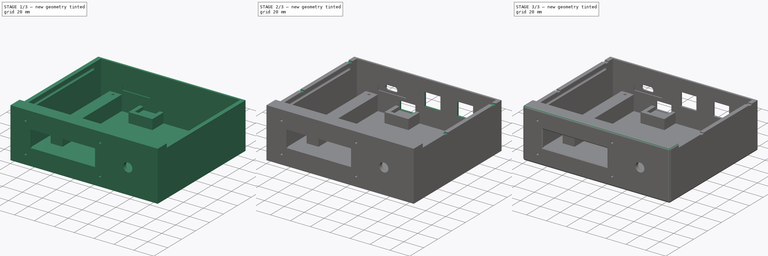
[diagram: build sequence overview — one tinted view per stage of 3, left to right]
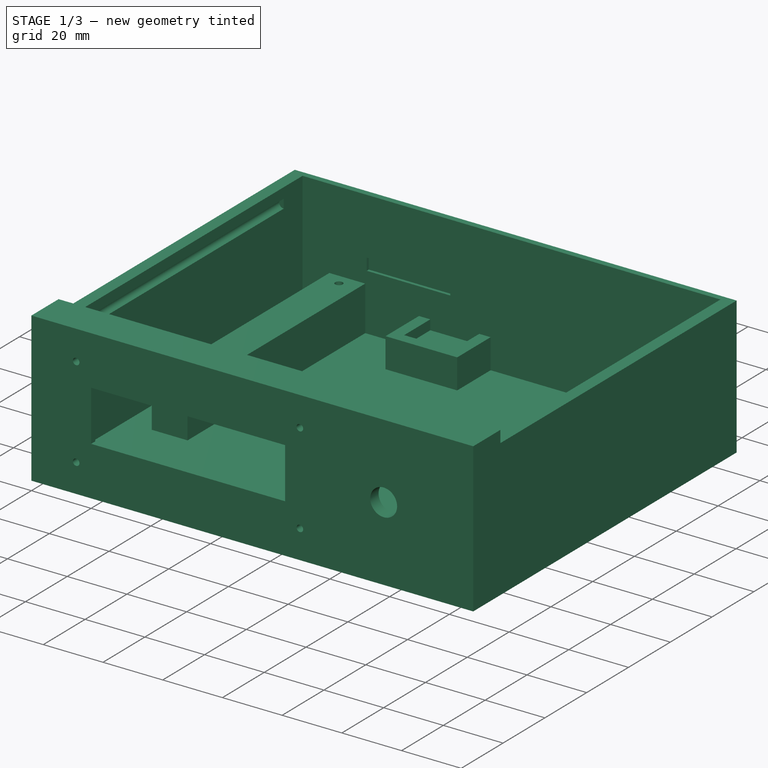
[diagram: stage 1 of 3 — iso view after this stage's code; geometry added in this stage tinted green]
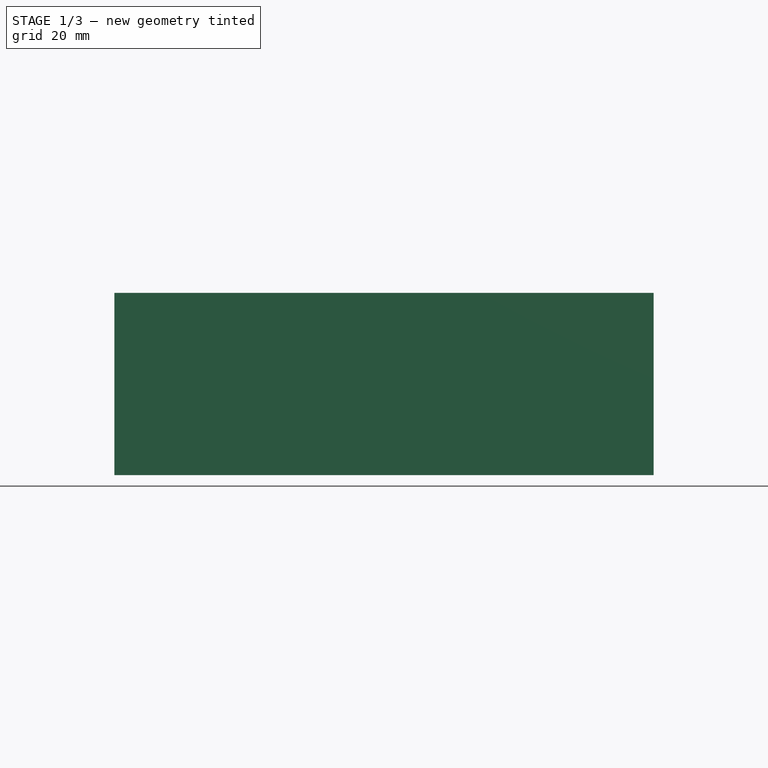
[diagram: stage 1 of 3 — front view after this stage's code; geometry added in this stage tinted green]
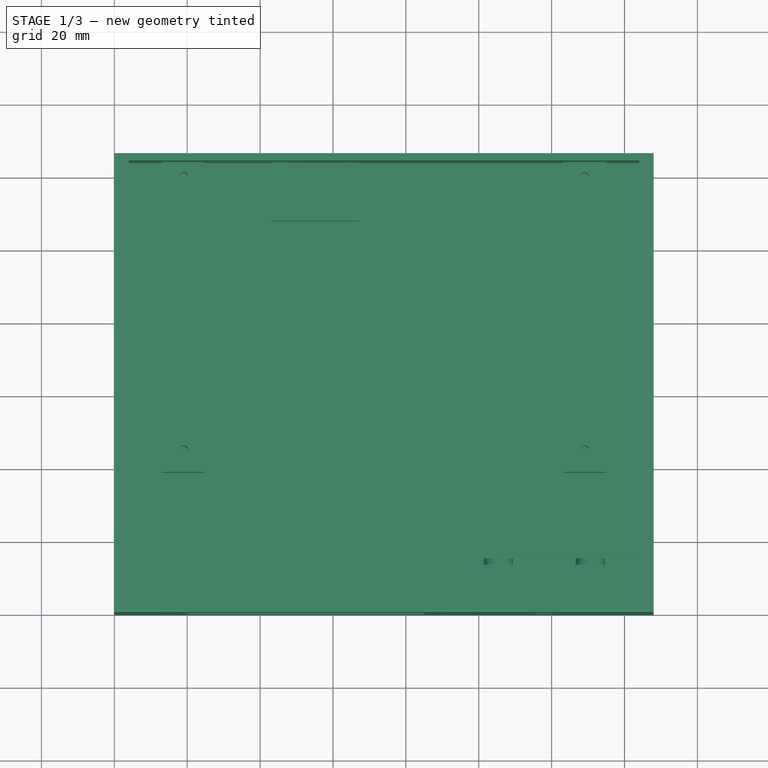
[diagram: stage 1 of 3 — top view after this stage's code; geometry added in this stage tinted green]
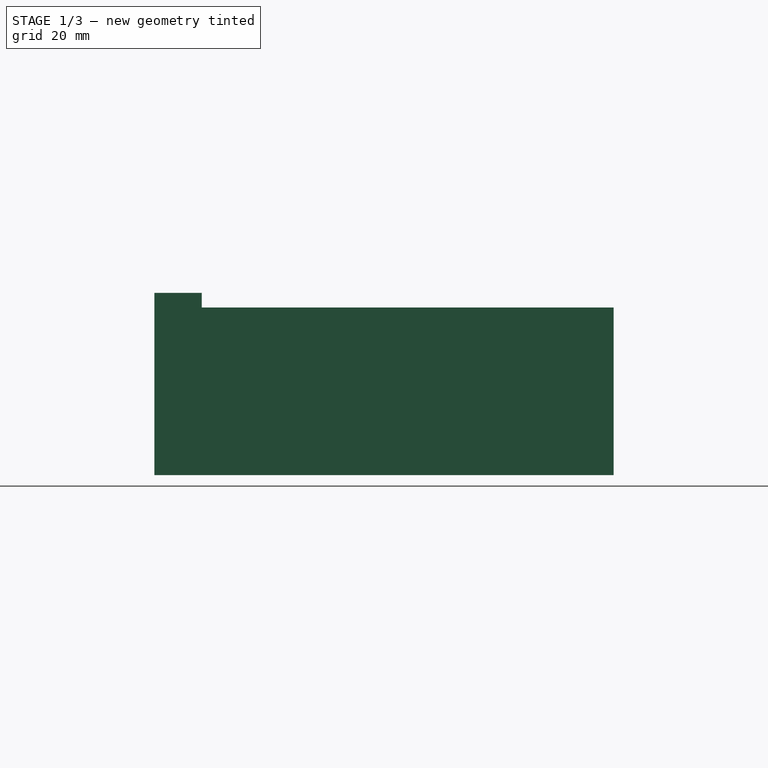
[diagram: stage 1 of 3 — right view after this stage's code; geometry added in this stage tinted green]
FCSTD DOCUMENT  (FreeCAD 0.21R33771 (Git))
Label: Enclosure
License: All rights reserved
LicenseURL: https://en.wikipedia.org/wiki/All_rights_reserved
objects: Sketcher::SketchObject×15, PartDesign::Pocket×8, PartDesign::Pad×7, PartDesign::Body×1, PartDesign::Fillet×1, PartDesign::Chamfer×1
note: 50 computed .brp shape members not serialized (recipe doc carries the construction recipe); baked Part::Feature solids carry a one-line shape summary decoded from their .brp

FEATURE [Sketcher::SketchObject] Sketch  label="Outside"
  FullyConstrained = true
  MapMode = 5
  Support = -> [XY_Plane]
  sketch-geometry (4):
    g0: LineSegment StartX=0 StartY=0 StartZ=0 EndX=148 EndY=0 EndZ=0
    g1: LineSegment StartX=148 StartY=0 StartZ=0 EndX=148 EndY=126 EndZ=0
    g2: LineSegment StartX=148 StartY=126 StartZ=0 EndX=0 EndY=126 EndZ=0
    g3: LineSegment StartX=0 StartY=126 StartZ=0 EndX=0 EndY=0 EndZ=0
  constraints (11):
    c: Coincident(g0,g1)
    c: Coincident(g1,g2)
    c: Coincident(g2,g3)
    c: Coincident(g3,g0)
    c: Horizontal(g0)
    c: Horizontal(g2)
    c: Vertical(g1)
    c: Vertical(g3)
    c: Coincident(g0,g-1)
    c: DistanceX(g2,g2) = 148
    c: DistanceY(g1,g1) = 126
FEATURE [PartDesign::Pad] Pad
  Direction = (0,0,1)
  Length = 50
  Length2 = 10
  Profile = -> Sketch
  ReferenceAxis = -> Sketch [N_Axis]
  Type = 0
FEATURE [Sketcher::SketchObject] Sketch001  label="Inside chamber"
  AttachmentOffset = pos=(0,0,4) rot=(0,0,1;0rad)
  FullyConstrained = true
  MapMode = 5
  Placement = pos=(0,0,4) rot=(0,0,1;0rad)
  Support = -> [XY_Plane]
  sketch-geometry (4):
    g0: LineSegment StartX=4 StartY=4 StartZ=0 EndX=144 EndY=4 EndZ=0
    g1: LineSegment StartX=144 StartY=4 StartZ=0 EndX=144 EndY=124 EndZ=0
    g2: LineSegment StartX=144 StartY=124 StartZ=0 EndX=4 EndY=124 EndZ=0
    g3: LineSegment StartX=4 StartY=124 StartZ=0 EndX=4 EndY=4 EndZ=0
  constraints (12):
    c: Coincident(g0,g1)
    c: Coincident(g1,g2)
    c: Coincident(g2,g3)
    c: Coincident(g3,g0)
    c: Horizontal(g0)
    c: Horizontal(g2)
    c: Vertical(g1)
    c: Vertical(g3)
    c: DistanceX(g0,g0) = 140
    c: DistanceX(g0) = 4
    c: DistanceY(g0) = 4
    c: DistanceY(g1,g1) = 120
FEATURE [PartDesign::Pocket] Pocket
  BaseFeature = -> Pad
  Direction = (0,0,-1)
  Length = 42
  Length2 = 5
  Profile = -> Sketch001
  ReferenceAxis = -> Sketch001 [N_Axis]
  Reversed = true
  Type = 0
FEATURE [Sketcher::SketchObject] Sketch002  label="Lid"
  FullyConstrained = true
  MapMode = 5
  Placement = pos=(0,0,50) rot=(0,0,1;0rad)
  Support = -> [Pocket]
  sketch-geometry (4):
    g0: LineSegment StartX=0 StartY=126 StartZ=0 EndX=148 EndY=126 EndZ=0
    g1: LineSegment StartX=148 StartY=126 StartZ=0 EndX=148 EndY=13 EndZ=0
    g2: LineSegment StartX=148 StartY=13 StartZ=0 EndX=0 EndY=13 EndZ=0
    g3: LineSegment StartX=0 StartY=13 StartZ=0 EndX=0 EndY=126 EndZ=0
  constraints (12):
    c: Coincident(g0,g1)
    c: Coincident(g1,g2)
    c: Coincident(g2,g3)
    c: Coincident(g3,g0)
    c: Horizontal(g0)
    c: Horizontal(g2)
    c: Vertical(g1)
    c: Vertical(g3)
    c: PointOnObject(g0,g-2)
    c: DistanceX(g0,g0) = 148
    c: DistanceY(g2) = 13
    c: DistanceY(g1,g1) = 113
FEATURE [PartDesign::Pocket] Pocket001
  BaseFeature = -> Pocket
  Direction = (0,0,-1)
  Length = 4
  Length2 = 5
  Profile = -> Sketch002
  ReferenceAxis = -> Sketch002 [N_Axis]
  Type = 0
FEATURE [Sketcher::SketchObject] Sketch003  label="Front holes"
  FullyConstrained = true
  MapMode = 5
  Placement = pos=(0,0,0) rot=(1,0,0;1.5708rad)
  Support = -> [Pocket001]
  sketch-geometry (9):
    g0: LineSegment StartX=20 StartY=33.5 StartZ=0 EndX=85 EndY=33.5 EndZ=0
    g1: LineSegment StartX=85 StartY=33.5 StartZ=0 EndX=85 EndY=16.5 EndZ=0
    g2: LineSegment StartX=85 StartY=16.5 StartZ=0 EndX=20 EndY=16.5 EndZ=0
    g3: LineSegment StartX=20 StartY=16.5 StartZ=0 EndX=20 EndY=33.5 EndZ=0
    g4: Circle CenterX=118 CenterY=25 CenterZ=0 NormalX=0 NormalY=0 NormalZ=1 AngleXU=0 Radius=4.5
    g5: Circle CenterX=15 CenterY=40.08 CenterZ=0 NormalX=0 NormalY=0 NormalZ=1 AngleXU=0 Radius=1.1
    g6: Circle CenterX=89.93 CenterY=40.08 CenterZ=0 NormalX=0 NormalY=0 NormalZ=1 AngleXU=0 Radius=1.1
    g7: Circle CenterX=89.93 CenterY=9.6 CenterZ=0 NormalX=0 NormalY=0 NormalZ=1 AngleXU=0 Radius=1.1
    g8: Circle CenterX=15 CenterY=9.6 CenterZ=0 NormalX=0 NormalY=0 NormalZ=1 AngleXU=0 Radius=1.1
  constraints (27):
    c: Coincident(g0,g1)
    c: Coincident(g1,g2)
    c: Coincident(g2,g3)
    c: Coincident(g3,g0)
    c: Horizontal(g0)
    c: Horizontal(g2)
    c: Vertical(g1)
    c: Vertical(g3)
    c: Diameter(g4) = 9
    c: DistanceX(g0,g0) = 65
    c: DistanceY(g3,g3) = 17
    c: DistanceY(g4) = 25
    c: DistanceX(g4) = 118
    c: DistanceX(g2) = 20
    c: DistanceY(g2) = 16.5
    c: Horizontal(g5,g6)
    c: Horizontal(g8,g7)
    c: Vertical(g5,g8)
    c: Vertical(g6,g7)
    c: Diameter(g5) = 2.2
    c: Equal(g5,g6)
    c: Equal(g6,g7)
    c: Equal(g7,g8)
    c: DistanceX(g5,g6) = 74.93
    c: DistanceY(g7,g6) = 30.48
    c: DistanceY(g8) = 9.6
    c: DistanceX(g8) = 15
FEATURE [PartDesign::Pocket] Pocket002
  BaseFeature = -> Pocket001
  Direction = (0,1,-2e-16)
  Length = 10
  Length2 = 5
  Profile = -> Sketch003
  ReferenceAxis = -> Sketch003 [N_Axis]
  Type = 0
FEATURE [Sketcher::SketchObject] Sketch004  label="Front Inside Recess"
  FullyConstrained = true
  MapMode = 5
  Placement = pos=(0,4,0) rot=(0,0.707107,0.707107;3.14159rad)
  Support = -> [Pocket002]
  sketch-geometry (4):
    g0: LineSegment StartX=-88.4 StartY=38.2 StartZ=0 EndX=-16.6 EndY=38.2 EndZ=0
    g1: LineSegment StartX=-16.6 StartY=38.2 StartZ=0 EndX=-16.6 EndY=11.7 EndZ=0
    g2: LineSegment StartX=-16.6 StartY=11.7 StartZ=0 EndX=-88.4 EndY=11.7 EndZ=0
    g3: LineSegment StartX=-88.4 StartY=11.7 StartZ=0 EndX=-88.4 EndY=38.2 EndZ=0
  constraints (12):
    c: Coincident(g0,g1)
    c: Coincident(g1,g2)
    c: Coincident(g2,g3)
    c: Coincident(g3,g0)
    c: Horizontal(g0)
    c: Horizontal(g2)
    c: Vertical(g1)
    c: Vertical(g3)
    c: DistanceY(g3,g3) = 26.5
    c: DistanceY(g1) = 11.7
    c: DistanceX(g0,g0) = 71.8
    c: DistanceX(g1) = -16.6
FEATURE [Sketcher::SketchObject] Sketch005  label="Dial Stand off"
  FullyConstrained = true
  MapMode = 5
  Placement = pos=(0,4,0) rot=(0,0.707107,0.707107;3.14159rad)
  sketch-geometry (4):
    g0: Circle CenterX=-130.6 CenterY=35.05 CenterZ=0 NormalX=0 NormalY=0 NormalZ=1 AngleXU=0 Radius=4
    g1: Circle CenterX=-105.4 CenterY=35.05 CenterZ=0 NormalX=0 NormalY=0 NormalZ=1 AngleXU=0 Radius=4
    g2: Circle CenterX=-105.4 CenterY=35.05 CenterZ=0 NormalX=0 NormalY=0 NormalZ=1 AngleXU=0 Radius=1.325
    g3: Circle CenterX=-130.6 CenterY=35.05 CenterZ=0 NormalX=0 NormalY=0 NormalZ=1 AngleXU=0 Radius=1.325
  constraints (10):
    c: Horizontal(g0,g1)
    c: Equal(g1,g0)
    c: DistanceX(g0,g1) = 25.2
    c: DistanceX(g1) = -105.4
    c: DistanceY(g1) = 35.05
    c: Coincident(g2,g1)
    c: Coincident(g3,g0)
    c: Equal(g2,g3)
    c: Diameter(g3) = 2.65
    c: Diameter(g0) = 8
FEATURE [PartDesign::Pad] Pad001
  BaseFeature = -> Pocket002
  Direction = (0,1,-2e-16)
  Length = 11
  Length2 = 10
  Profile = -> Sketch005
  ReferenceAxis = -> Sketch005 [N_Axis]
  Type = 0
FEATURE [Sketcher::SketchObject] Sketch006  label="LCD Stand off"
  FullyConstrained = true
  MapMode = 5
  Placement = pos=(0,4,0) rot=(0,0.707107,0.707107;3.14159rad)
  Support = -> [Pad001]
  sketch-geometry (8):
    g0: Circle CenterX=-89.93 CenterY=40.08 CenterZ=0 NormalX=0 NormalY=0 NormalZ=1 AngleXU=0 Radius=2.45
    g1: Circle CenterX=-15 CenterY=40.08 CenterZ=0 NormalX=0 NormalY=0 NormalZ=1 AngleXU=0 Radius=2.45
    g2: Circle CenterX=-15 CenterY=9.6 CenterZ=0 NormalX=0 NormalY=0 NormalZ=1 AngleXU=0 Radius=2.45
    g3: Circle CenterX=-89.93 CenterY=9.6 CenterZ=0 NormalX=0 NormalY=0 NormalZ=1 AngleXU=0 Radius=2.45
    g4: Circle CenterX=-89.93 CenterY=40.08 CenterZ=0 NormalX=0 NormalY=0 NormalZ=1 AngleXU=0 Radius=1.1
    g5: Circle CenterX=-15 CenterY=40.08 CenterZ=0 NormalX=0 NormalY=0 NormalZ=1 AngleXU=0 Radius=1.1
    g6: Circle CenterX=-15 CenterY=9.6 CenterZ=0 NormalX=0 NormalY=0 NormalZ=1 AngleXU=0 Radius=1.1
    g7: Circle CenterX=-89.93 CenterY=9.6 CenterZ=0 NormalX=0 NormalY=0 NormalZ=1 AngleXU=0 Radius=1.1
  constraints (20):
    c: Horizontal(g0,g1)
    c: Horizontal(g3,g2)
    c: Vertical(g0,g3)
    c: Vertical(g1,g2)
    c: Diameter(g0) = 4.9
    c: Equal(g0,g1)
    c: Equal(g1,g2)
    c: Equal(g2,g3)
    c: DistanceX(g0,g1) = 74.93
    c: DistanceY(g3,g0) = 30.48
    c: DistanceX(g2) = -15
    c: DistanceY(g2) = 9.6
    c: Coincident(g4,g0)
    c: Coincident(g5,g1)
    c: Coincident(g6,g2)
    c: Coincident(g7,g3)
    c: Equal(g4,g5)
    c: Equal(g5,g6)
    c: Equal(g6,g7)
    c: Diameter(g4) = 2.2
FEATURE [PartDesign::Pad] Pad002
  BaseFeature = -> Pad001
  Direction = (0,1,-2e-16)
  Length = 6
  Length2 = 10
  Profile = -> Sketch006
  ReferenceAxis = -> Sketch006 [N_Axis]
  Type = 0
FEATURE [Sketcher::SketchObject] Sketch007  label="PCB RIser"
  FullyConstrained = true
  MapMode = 5
  Placement = pos=(0,0,4) rot=(0,0,1;0rad)
  Support = -> [Pad002]
  sketch-geometry (12):
    g0: LineSegment StartX=13 StartY=124 StartZ=0 EndX=25 EndY=124 EndZ=0
    g1: LineSegment StartX=25 StartY=124 StartZ=0 EndX=25 EndY=39 EndZ=0
    g2: LineSegment StartX=25 StartY=39 StartZ=0 EndX=13 EndY=39 EndZ=0
    g3: LineSegment StartX=13 StartY=39 StartZ=0 EndX=13 EndY=124 EndZ=0
    g4: LineSegment StartX=123 StartY=124 StartZ=0 EndX=135 EndY=124 EndZ=0
    g5: LineSegment StartX=135 StartY=124 StartZ=0 EndX=135 EndY=39 EndZ=0
    g6: LineSegment StartX=135 StartY=39 StartZ=0 EndX=123 EndY=39 EndZ=0
    g7: LineSegment StartX=123 StartY=39 StartZ=0 EndX=123 EndY=124 EndZ=0
    g8: Circle CenterX=19 CenterY=120 CenterZ=0 NormalX=0 NormalY=0 NormalZ=1 AngleXU=0 Radius=1.25
    g9: Circle CenterX=19 CenterY=45 CenterZ=0 NormalX=0 NormalY=0 NormalZ=1 AngleXU=0 Radius=1.25
    g10: Circle CenterX=129 CenterY=45 CenterZ=0 NormalX=0 NormalY=0 NormalZ=1 AngleXU=0 Radius=1.25
    g11: Circle CenterX=129 CenterY=120 CenterZ=0 NormalX=0 NormalY=0 NormalZ=1 AngleXU=0 Radius=1.25
  constraints (36):
    c: Coincident(g0,g1)
    c: Coincident(g1,g2)
    c: Coincident(g2,g3)
    c: Coincident(g3,g0)
    c: Horizontal(g0)
    c: Horizontal(g2)
    c: Vertical(g1)
    c: Vertical(g3)
    c: Coincident(g4,g5)
    c: Coincident(g5,g6)
    c: Coincident(g6,g7)
    c: Coincident(g7,g4)
    c: Horizontal(g4)
    c: Horizontal(g6)
    c: Vertical(g5)
    c: Vertical(g7)
    c: DistanceX(g0) = 13
    c: DistanceX(g0,g4) = 110
    c: Equal(g0,g4)
    c: Equal(g1,g7)
    c: Horizontal(g0,g4)
    c: DistanceY(g0) = 124
    c: DistanceY(g1,g1) = 85
    c: Equal(g8,g11)
    c: Equal(g11,g10)
    c: Equal(g10,g9)
    c: Diameter(g8) = 2.5
    c: Horizontal(g8,g11)
    c: Horizontal(g9,g10)
    c: Vertical(g8,g9)
    c: Vertical(g11,g10)
    c: DistanceX(g9,g10) = 110
    c: DistanceY(g10,g11) = 75
    c: DistanceY(g8) = 120
    c: DistanceX(g8) = 19
    c: DistanceX(g2,g2) = 12
FEATURE [PartDesign::Pad] Pad003
  BaseFeature = -> Pad002
  Direction = (0,0,1)
  Length = 15
  Length2 = 10
  Profile = -> Sketch007
  ReferenceAxis = -> Sketch007 [N_Axis]
  Type = 0
FEATURE [Sketcher::SketchObject] Sketch008  label="Back Panel Holes"
  FullyConstrained = true
  MapMode = 5
  Placement = pos=(0,126,0) rot=(0,0.707107,0.707107;3.14159rad)
  Support = -> [Pad003]
  sketch-geometry (16):
    g0: LineSegment StartX=-120.8 StartY=34 StartZ=0 EndX=-104.9 EndY=34 EndZ=0
    g1: LineSegment StartX=-104.9 StartY=34 StartZ=0 EndX=-104.9 EndY=20.7 EndZ=0
    g2: LineSegment StartX=-104.9 StartY=20.7 StartZ=0 EndX=-120.8 EndY=20.7 EndZ=0
    g3: LineSegment StartX=-120.8 StartY=20.7 StartZ=0 EndX=-120.8 EndY=34 EndZ=0
    g4: LineSegment StartX=-88 StartY=34 StartZ=0 EndX=-72.1 EndY=34 EndZ=0
    g5: LineSegment StartX=-72.1 StartY=34 StartZ=0 EndX=-72.1 EndY=20.7 EndZ=0
    g6: LineSegment StartX=-72.1 StartY=20.7 StartZ=0 EndX=-88 EndY=20.7 EndZ=0
    g7: LineSegment StartX=-88 StartY=20.7 StartZ=0 EndX=-88 EndY=34 EndZ=0
    g8: ArcOfCircle CenterX=-42.1 CenterY=27.8 CenterZ=0 NormalX=0 NormalY=0 NormalZ=1 AngleXU=0 Radius=2.5 StartAngle=1.5708 EndAngle=4.71239
    g9: ArcOfCircle CenterX=-35.1 CenterY=27.8 CenterZ=0 NormalX=0 NormalY=0 NormalZ=1 AngleXU=0 Radius=2.5 StartAngle=4.71239 EndAngle=7.85398
    g10: LineSegment StartX=-42.1 StartY=25.3 StartZ=0 EndX=-35.1 EndY=25.3 EndZ=0
    g11: LineSegment StartX=-35.1 StartY=30.3 StartZ=0 EndX=-42.1 EndY=30.3 EndZ=0
    g12: LineSegment StartX=-62.8 StartY=19.5 StartZ=0 EndX=-47.2 EndY=19.5 EndZ=0
    g13: LineSegment StartX=-47.2 StartY=19.5 StartZ=0 EndX=-47.2 EndY=11.2 EndZ=0
    g14: LineSegment StartX=-47.2 StartY=11.2 StartZ=0 EndX=-62.8 EndY=11.2 EndZ=0
    g15: LineSegment StartX=-62.8 StartY=11.2 StartZ=0 EndX=-62.8 EndY=19.5 EndZ=0
  constraints (46):
    c: Coincident(g0,g1)
    c: Coincident(g1,g2)
    c: Coincident(g2,g3)
    c: Coincident(g3,g0)
    c: Horizontal(g0)
    c: Horizontal(g2)
    c: Vertical(g1)
    c: Vertical(g3)
    c: Coincident(g4,g5)
    c: Coincident(g5,g6)
    c: Coincident(g6,g7)
    c: Coincident(g7,g4)
    c: Horizontal(g4)
    c: Horizontal(g6)
    c: Vertical(g5)
    c: Vertical(g7)
    c: Tangent(g8,g10) = -1.5708
    c: Tangent(g10,g9) = -1.5708
    c: Tangent(g9,g11) = -1.5708
    c: Tangent(g11,g8) = -1.5708
    c: Equal(g8,g9)
    c: Horizontal(g10)
    c: Coincident(g12,g13)
    c: Coincident(g13,g14)
    c: Coincident(g14,g15)
    c: Coincident(g15,g12)
    c: Horizontal(g12)
    c: Horizontal(g14)
    c: Vertical(g13)
    c: Vertical(g15)
    c: Equal(g1,g7)
    c: Equal(g2,g6)
    c: Horizontal(g0,g4)
    c: Radius(g9) = 2.5
    c: DistanceX(g11,g11) = 7
    c: DistanceX(g0,g4) = 16.9
    c: DistanceX(g0,g0) = 15.9
    c: DistanceY(g3,g3) = 13.3
    c: DistanceY(g2) = 20.7
    c: DistanceX(g12,g12) = 15.6
    c: DistanceY(g13,g13) = 8.3
    c: DistanceX(g13) = -47.2
    c: DistanceY(g9) = 27.8
    c: DistanceX(g4,g9) = 37
    c: DistanceX(g0) = -120.8
    c: DistanceY(g13) = 11.2
FEATURE [Sketcher::SketchObject] Sketch009  label="PowerPole Pad"
  FullyConstrained = true
  MapMode = 5
  Placement = pos=(0,0,4) rot=(0,0,1;0rad)
  sketch-geometry (4):
    g0: LineSegment StartX=67 StartY=108 StartZ=0 EndX=43 EndY=108 EndZ=0
    g1: LineSegment StartX=43 StartY=108 StartZ=0 EndX=43 EndY=124 EndZ=0
    g2: LineSegment StartX=43 StartY=124 StartZ=0 EndX=67 EndY=124 EndZ=0
    g3: LineSegment StartX=67 StartY=124 StartZ=0 EndX=67 EndY=108 EndZ=0
  constraints (12):
    c: Coincident(g0,g1)
    c: Coincident(g1,g2)
    c: Coincident(g2,g3)
    c: Coincident(g3,g0)
    c: Horizontal(g0)
    c: Horizontal(g2)
    c: Vertical(g1)
    c: Vertical(g3)
    c: DistanceX(g0,g0) = 24
    c: DistanceY(g3,g3) = 16
    c: DistanceY(g1) = 124
    c: DistanceX(g1) = 43
FEATURE [PartDesign::Pad] Pad004
  BaseFeature = -> Pad003
  Direction = (0,0,1)
  Length = 6.7
  Length2 = 10
  Profile = -> Sketch009
  ReferenceAxis = -> Sketch009 [N_Axis]
  Type = 0
FEATURE [Sketcher::SketchObject] Sketch010  label="PowerPole Clapse"
  FullyConstrained = true
  MapMode = 5
  Placement = pos=(0,0,10.7) rot=(0,0,1;0rad)
  Support = -> [Pad004]
  sketch-geometry (8):
    g0: LineSegment StartX=67 StartY=124 StartZ=0 EndX=67 EndY=108 EndZ=0
    g1: LineSegment StartX=67 StartY=108 StartZ=0 EndX=43 EndY=108 EndZ=0
    g2: LineSegment StartX=43 StartY=108 StartZ=0 EndX=43 EndY=124 EndZ=0
    g3: LineSegment StartX=43 StartY=124 StartZ=0 EndX=46.8 EndY=124 EndZ=0
    g4: LineSegment StartX=46.8 StartY=124 StartZ=0 EndX=46.8 EndY=111.5 EndZ=0
    g5: LineSegment StartX=46.8 StartY=111.5 StartZ=0 EndX=63.2 EndY=111.5 EndZ=0
    g6: LineSegment StartX=63.2 StartY=111.5 StartZ=0 EndX=63.2 EndY=124 EndZ=0
    g7: LineSegment StartX=63.2 StartY=124 StartZ=0 EndX=67 EndY=124 EndZ=0
  constraints (24):
    c: Vertical(g0)
    c: Coincident(g1,g0)
    c: Horizontal(g1)
    c: Coincident(g2,g1)
    c: Vertical(g2)
    c: Coincident(g3,g2)
    c: Horizontal(g3)
    c: Coincident(g4,g3)
    c: Vertical(g4)
    c: Coincident(g5,g4)
    c: Horizontal(g5)
    c: Coincident(g6,g5)
    c: Vertical(g6)
    c: Coincident(g7,g0)
    c: DistanceX(g2) = 43
    c: Horizontal(g7)
    c: Equal(g3,g7)
    c: Coincident(g6,g7)
    c: DistanceX(g3,g3) = 3.8
    c: DistanceX(g1,g1) = 24
    c: DistanceY(g2,g2) = 16
    c: DistanceY(g2) = 124
    c: Equal(g2,g0)
    c: DistanceY(g4,g4) = 12.5
FEATURE [PartDesign::Pad] Pad005
  BaseFeature = -> Pad004
  Direction = (0,0,1)
  Length = 3.3
  Length2 = 10
  Profile = -> Sketch010
  ReferenceAxis = -> Sketch010 [N_Axis]
  Type = 0
FEATURE [Sketcher::SketchObject] Sketch011  label="Lid latch"
  AttachmentOffset = pos=(0,0,-20) rot=(0,0,1;0rad)
  FullyConstrained = true
  MapMode = 5
  Placement = pos=(0,20,-4.4e-15) rot=(1,0,0;1.5708rad)
  Support = -> [Pad005]
  sketch-geometry (4):
    g0: ArcOfCircle CenterX=144 CenterY=41 CenterZ=0 NormalX=0 NormalY=0 NormalZ=1 AngleXU=0 Radius=1.5 StartAngle=4.71239 EndAngle=7.85398
    g1: ArcOfCircle CenterX=4 CenterY=41 CenterZ=0 NormalX=0 NormalY=0 NormalZ=1 AngleXU=0 Radius=1.5 StartAngle=1.5708 EndAngle=4.71239
    g2: LineSegment StartX=4 StartY=42.5 StartZ=0 EndX=4 EndY=39.5 EndZ=0
    g3: LineSegment StartX=144 StartY=42.5 StartZ=0 EndX=144 EndY=39.5 EndZ=0
  constraints (14):
    c: Radius(g1) = 1.5
    c: Equal(g1,g0)
    c: Horizontal(g1,g0)
    c: Angle(g1) = 3.14159
    c: Angle(g0) = 3.14159
    c: Vertical(g0,g0)
    c: Vertical(g1,g1)
    c: DistanceX(g1,g0) = 140
    c: DistanceX(g1) = 4
    c: Coincident(g2,g1)
    c: Coincident(g2,g1)
    c: Coincident(g3,g0)
    c: Coincident(g3,g0)
    c: DistanceY(g1) = 41
FEATURE [PartDesign::Pocket] Pocket005
  BaseFeature = -> Pad005
  Direction = (0,1,-2e-16)
  Length = 95
  Length2 = 5
  Profile = -> Sketch011
  ReferenceAxis = -> Sketch011 [N_Axis]
  Type = 0
FEATURE [Sketcher::SketchObject] Sketch012  label="Lid Open Slots"
  FullyConstrained = true
  MapMode = 5
  Placement = pos=(0,0,46) rot=(0,0,1;0rad)
  Support = -> [Pocket005]
  sketch-geometry (8):
    g0: LineSegment StartX=0 StartY=49 StartZ=0 EndX=148 EndY=49 EndZ=0
    g1: LineSegment StartX=148 StartY=49 StartZ=0 EndX=148 EndY=45 EndZ=0
    g2: LineSegment StartX=148 StartY=45 StartZ=0 EndX=0 EndY=45 EndZ=0
    g3: LineSegment StartX=0 StartY=45 StartZ=0 EndX=0 EndY=49 EndZ=0
    g4: LineSegment StartX=0 StartY=118 StartZ=0 EndX=148 EndY=118 EndZ=0
    g5: LineSegment StartX=148 StartY=118 StartZ=0 EndX=148 EndY=114 EndZ=0
    g6: LineSegment StartX=148 StartY=114 StartZ=0 EndX=0 EndY=114 EndZ=0
    g7: LineSegment StartX=0 StartY=114 StartZ=0 EndX=0 EndY=118 EndZ=0
  constraints (24):
    c: Coincident(g0,g1)
    c: Coincident(g1,g2)
    c: Coincident(g2,g3)
    c: Coincident(g3,g0)
    c: Horizontal(g0)
    c: Horizontal(g2)
    c: Vertical(g1)
    c: Vertical(g3)
    c: Coincident(g4,g5)
    c: Coincident(g5,g6)
    c: Coincident(g6,g7)
    c: Coincident(g7,g4)
    c: Horizontal(g4)
    c: Horizontal(g6)
    c: Vertical(g5)
    c: Vertical(g7)
    c: Equal(g7,g3)
    c: DistanceY(g7,g7) = 4
    c: Equal(g6,g0)
    c: DistanceX(g4,g4) = 148
    c: DistanceX(g2) = 0
    c: DistanceY(g2) = 45
    c: DistanceY(g0,g6) = 65
    c: Vertical(g0,g6)
FEATURE [PartDesign::Body] Body
  Group = -> [Sketch,Pad,Sketch001,Pocket,Sketch002,Pocket001,Sketch003,Pocket002,Sketch004,Sketch005,Pad001,Sketch006,Pad002,Sketch007,Pad003,Sketch008,Sketch009,Pad004,Sketch010,Pad005,Sketch011,Pocket005,Sketch012,Sketch013,Pocket007,Sketch014,Pad006,Pocket008,Pocket009,Pocket010,Fillet,Chamfer]
  Origin = -> Origin
  Tip = -> Chamfer
FEATURE [Sketcher::SketchObject] Sketch013  label="Carrier board recess"
  FullyConstrained = true
  MapMode = 5
  Placement = pos=(0,124,0) rot=(1,0,0;1.5708rad)
  Support = -> [Pocket007]
  sketch-geometry (4):
    g0: LineSegment StartX=25.5 StartY=27 StartZ=0 EndX=53.5 EndY=27 EndZ=0
    g1: LineSegment StartX=53.5 StartY=27 StartZ=0 EndX=53.5 EndY=23 EndZ=0
    g2: LineSegment StartX=53.5 StartY=23 StartZ=0 EndX=25.5 EndY=23 EndZ=0
    g3: LineSegment StartX=25.5 StartY=23 StartZ=0 EndX=25.5 EndY=27 EndZ=0
  constraints (12):
    c: Coincident(g0,g1)
    c: Coincident(g1,g2)
    c: Coincident(g2,g3)
    c: Coincident(g3,g0)
    c: Horizontal(g0)
    c: Horizontal(g2)
    c: Vertical(g1)
    c: Vertical(g3)
    c: DistanceX(g0,g0) = 28
    c: DistanceY(g3,g3) = 4
    c: DistanceY(g2) = 23
    c: DistanceX(g2) = 25.5
FEATURE [PartDesign::Pocket] Pocket007
  BaseFeature = -> Pocket005
  Direction = (0,1,-2e-16)
  Length = 1
  Length2 = 5
  Profile = -> Sketch013
  ReferenceAxis = -> Sketch013 [N_Axis]
  Type = 0
FEATURE [Sketcher::SketchObject] Sketch014  label="Knob PCB catch"
  FullyConstrained = true
  MapMode = 5
  Placement = pos=(144,0,0) rot=(0.57735,-0.57735,-0.57735;2.0944rad)
  Support = -> [Pocket007]
  sketch-geometry (8):
    g0: LineSegment StartX=-4 StartY=4 StartZ=0 EndX=-20 EndY=4 EndZ=0
    g1: LineSegment StartX=-20 StartY=4 StartZ=0 EndX=-20 EndY=13 EndZ=0
    g2: LineSegment StartX=-20 StartY=13 StartZ=0 EndX=-16.7 EndY=13 EndZ=0
    g3: LineSegment StartX=-16.7 StartY=13 StartZ=0 EndX=-16.7 EndY=11 EndZ=0
    g4: LineSegment StartX=-16.7 StartY=11 StartZ=0 EndX=-15 EndY=11 EndZ=0
    g5: LineSegment StartX=-15 StartY=11 StartZ=0 EndX=-15 EndY=13 EndZ=0
    g6: LineSegment StartX=-15 StartY=13 StartZ=0 EndX=-4 EndY=13 EndZ=0
    g7: LineSegment StartX=-4 StartY=13 StartZ=0 EndX=-4 EndY=4 EndZ=0
  constraints (24):
    c: Horizontal(g0)
    c: Coincident(g1,g0)
    c: Vertical(g1)
    c: Coincident(g2,g1)
    c: Horizontal(g2)
    c: Coincident(g3,g2)
    c: Vertical(g3)
    c: Coincident(g4,g3)
    c: Coincident(g5,g4)
    c: Vertical(g5)
    c: Horizontal(g6)
    c: Coincident(g7,g0)
    c: DistanceX(g0) = -4
    c: DistanceY(g0) = 4
    c: Vertical(g7)
    c: Coincident(g6,g7)
    c: DistanceX(g6,g6) = 11
    c: Coincident(g5,g6)
    c: Equal(g5,g3)
    c: DistanceY(g7,g7) = 9
    c: Equal(g7,g1)
    c: DistanceX(g4,g4) = 1.7
    c: DistanceX(g0,g0) = 16
    c: DistanceY(g5,g5) = 2
FEATURE [PartDesign::Pad] Pad006
  BaseFeature = -> Pocket007
  Direction = (-1,0,0)
  Length = 40
  Length2 = 10
  Profile = -> Sketch014
  ReferenceAxis = -> Sketch014 [N_Axis]
  Type = 0
FEATURE [PartDesign::Pocket] Pocket008
  BaseFeature = -> Pad006
  Direction = (0,-1,2e-16)
  Length = 2
  Length2 = 5
  Profile = -> Sketch004
  ReferenceAxis = -> Sketch004 [N_Axis]
  Type = 0
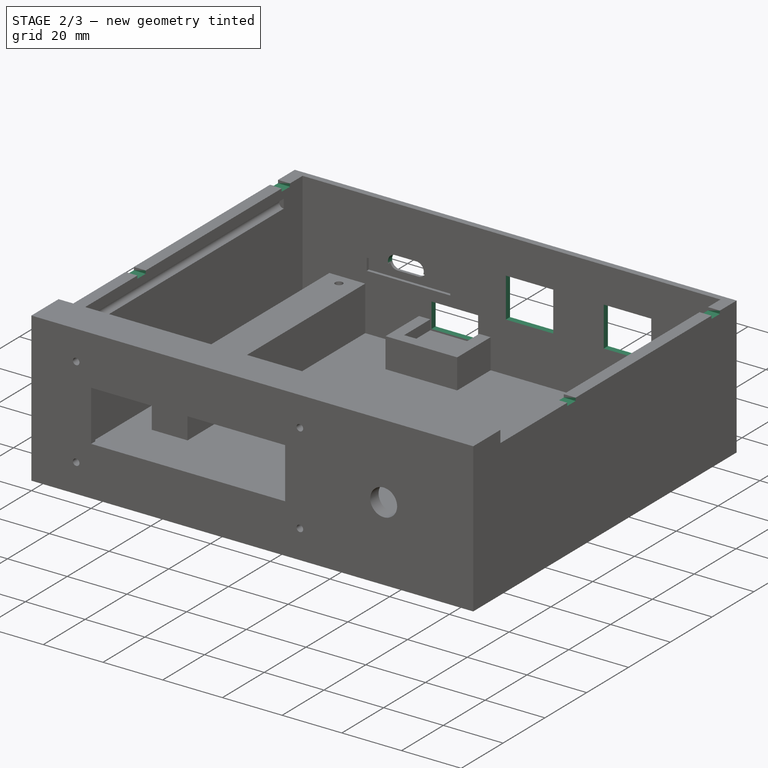
[diagram: stage 2 of 3 — iso view after this stage's code; geometry added in this stage tinted green]
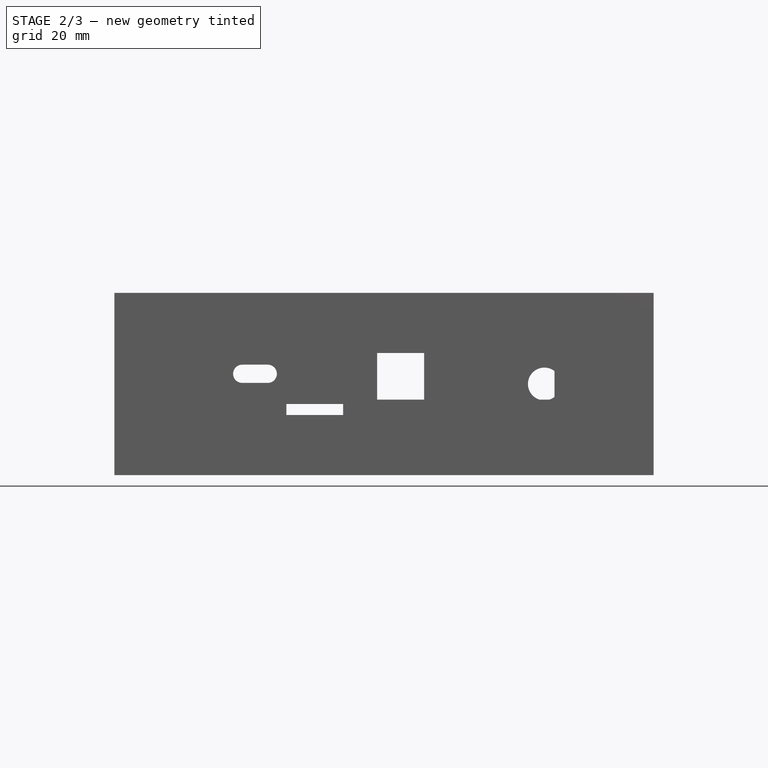
[diagram: stage 2 of 3 — front view after this stage's code; geometry added in this stage tinted green]
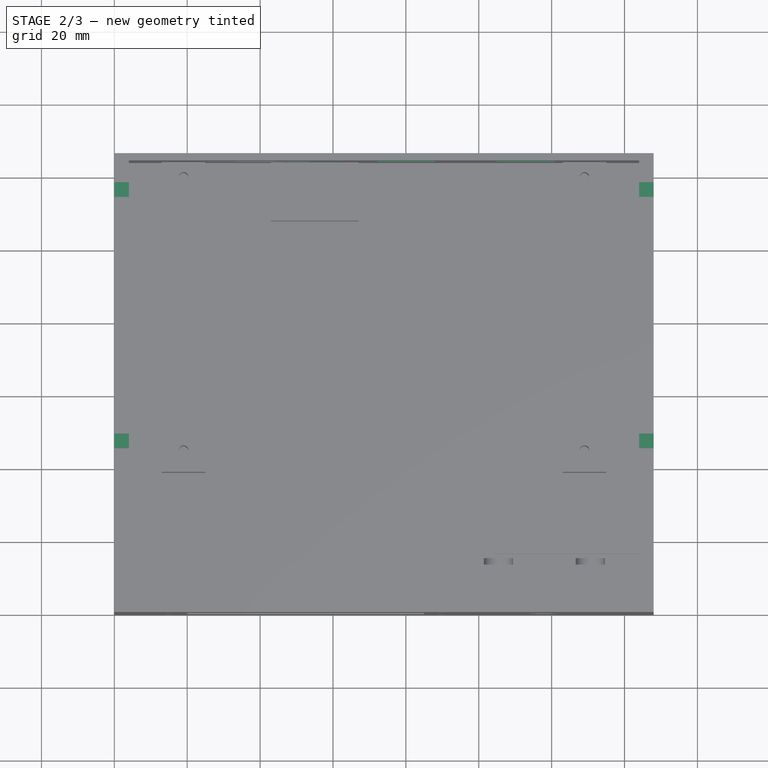
[diagram: stage 2 of 3 — top view after this stage's code; geometry added in this stage tinted green]
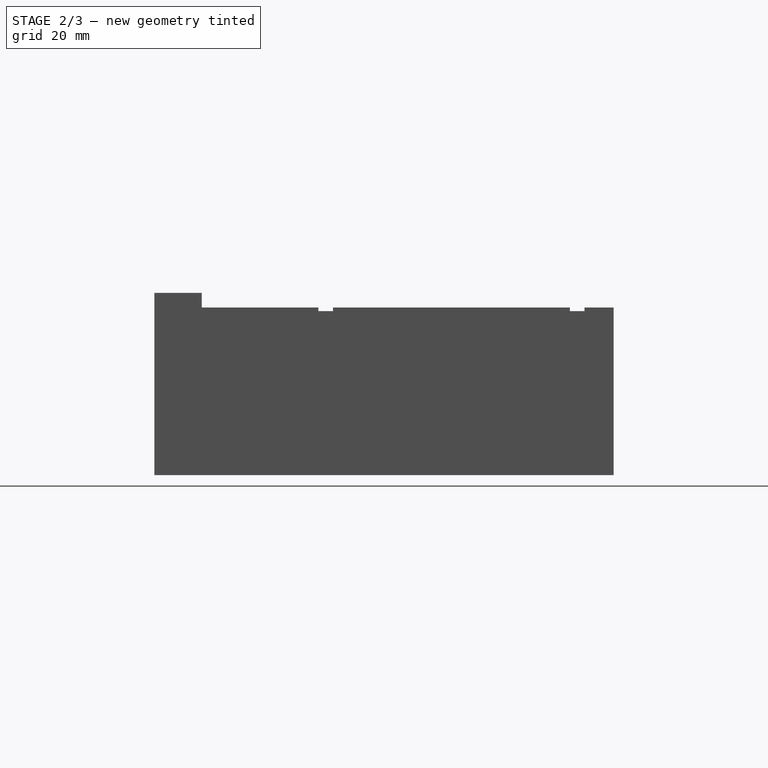
[diagram: stage 2 of 3 — right view after this stage's code; geometry added in this stage tinted green]
FEATURE [PartDesign::Pocket] Pocket009
  BaseFeature = -> Pocket008
  Direction = (0,-1,2e-16)
  Length = 2
  Length2 = 5
  Profile = -> Sketch008
  ReferenceAxis = -> Sketch008 [N_Axis]
  Type = 0
FEATURE [PartDesign::Pocket] Pocket010
  BaseFeature = -> Pocket009
  Direction = (0,0,-1)
  Length = 1
  Length2 = 5
  Profile = -> Sketch012
  ReferenceAxis = -> Sketch012 [N_Axis]
  Type = 0
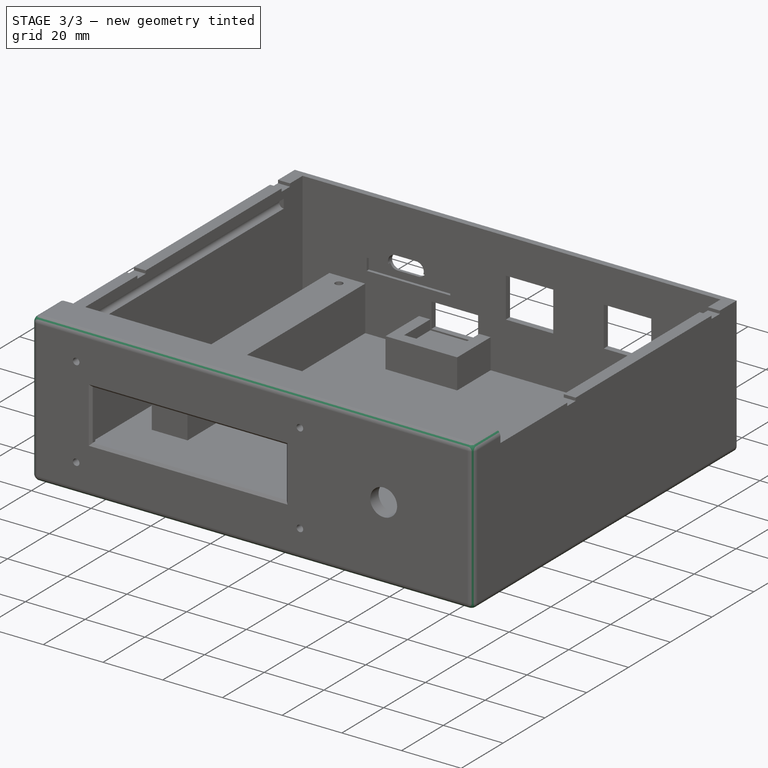
[diagram: stage 3 of 3 — iso view after this stage's code; geometry added in this stage tinted green]
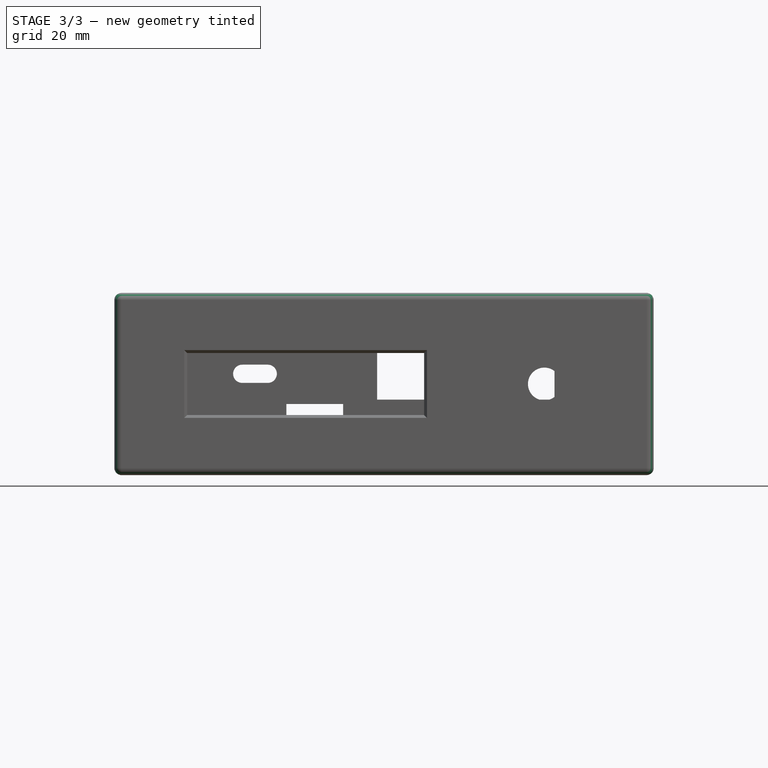
[diagram: stage 3 of 3 — front view after this stage's code; geometry added in this stage tinted green]
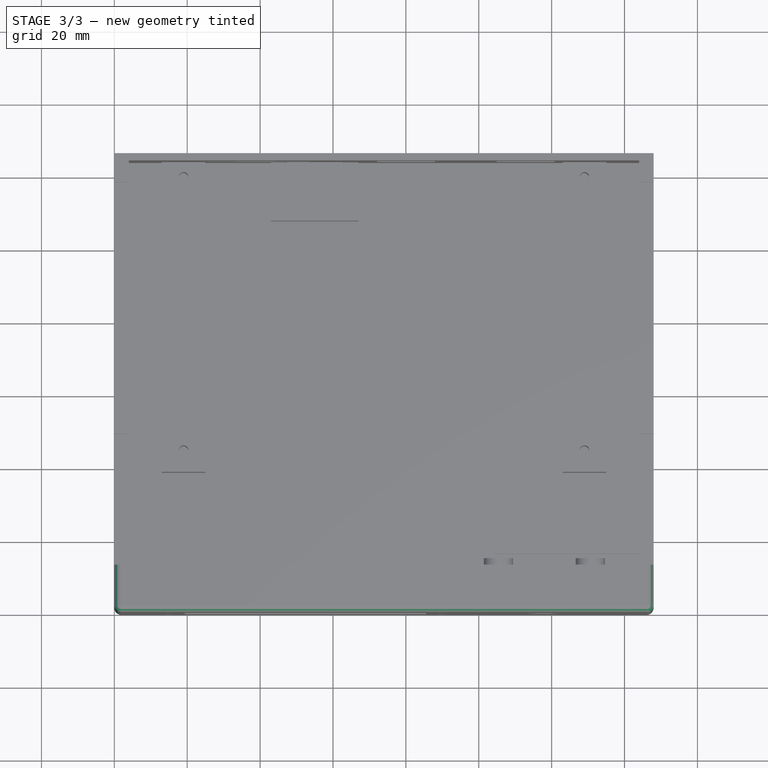
[diagram: stage 3 of 3 — top view after this stage's code; geometry added in this stage tinted green]
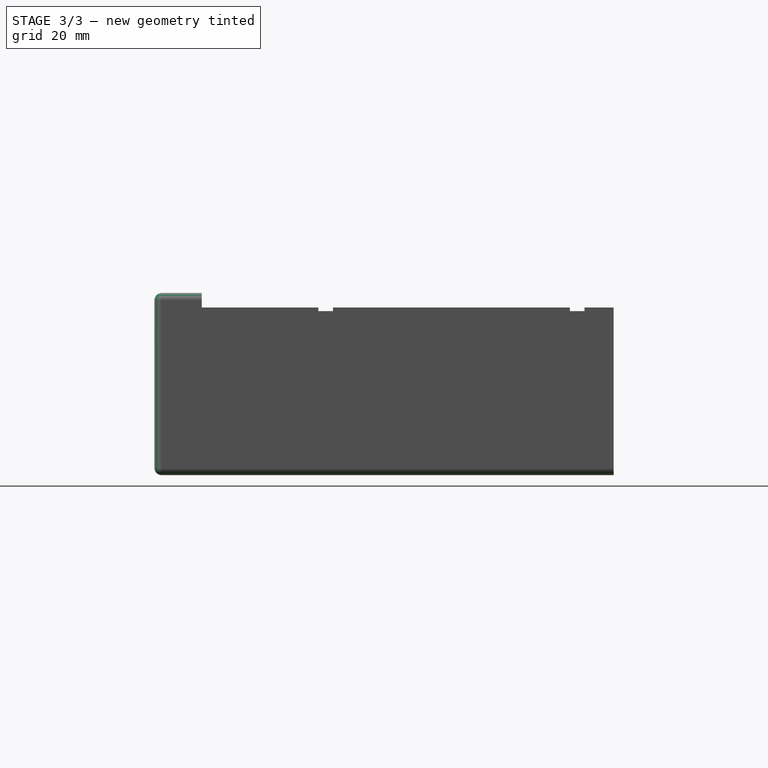
[diagram: stage 3 of 3 — right view after this stage's code; geometry added in this stage tinted green]
FEATURE [PartDesign::Fillet] Fillet
  Base = -> Pocket010 [Edge4,Edge2,Edge1,Edge3,Edge27,Edge14,Edge30,Edge15]
  BaseFeature = -> Pocket010
  Radius = 2
  SupportTransform = false
  UseAllEdges = false
FEATURE [PartDesign::Chamfer] Chamfer
  Angle = 45
  Base = -> Fillet [Edge9,Edge6,Edge7,Edge8]
  BaseFeature = -> Fillet
  ChamferType = 0
  FlipDirection = false
  Size = 0.8
  Size2 = 1
  SupportTransform = false
  UseAllEdges = false
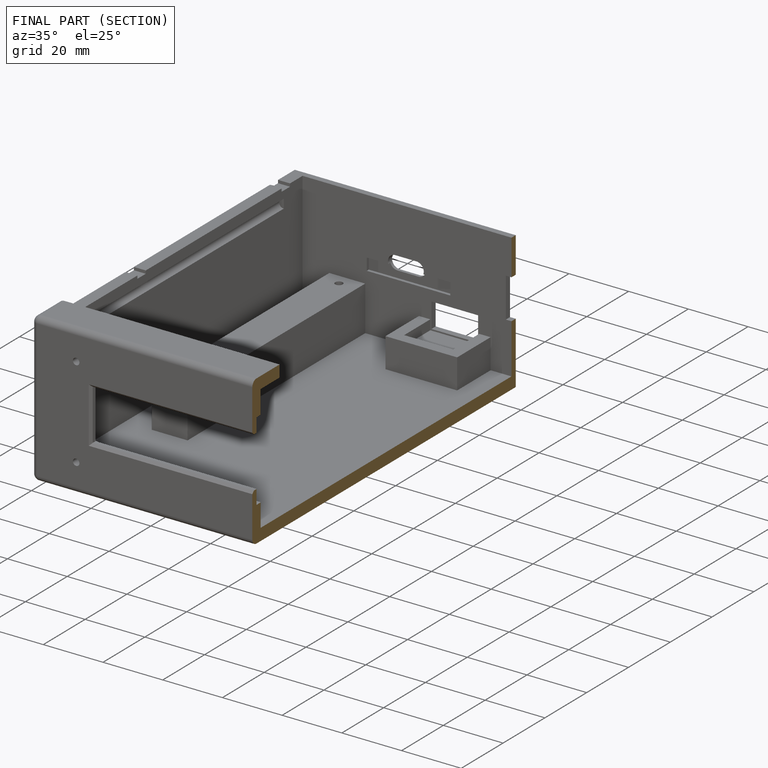
[diagram: finished part — half-section view (interior)]
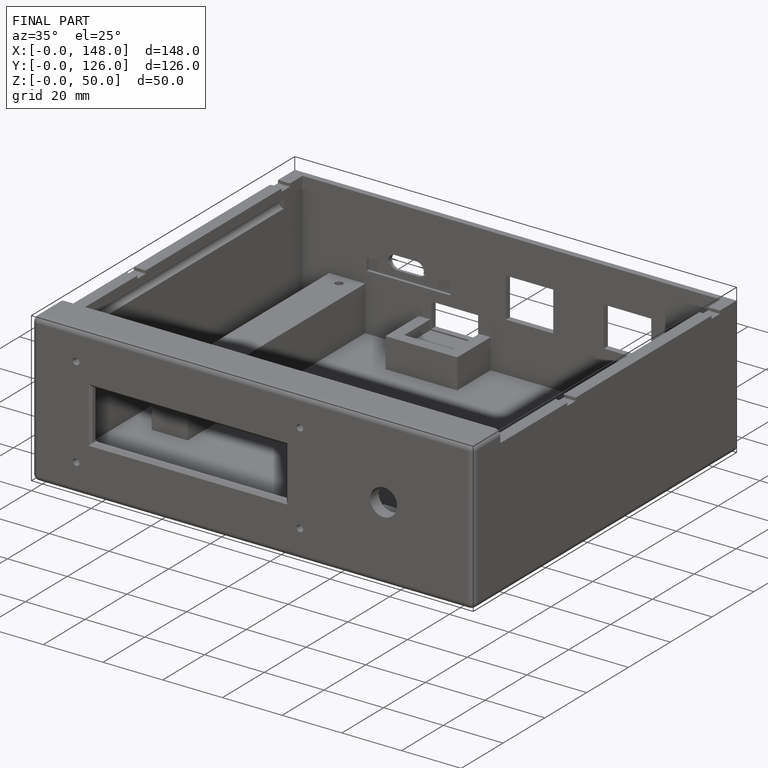
[diagram: finished part — iso view with bounding-box wireframe]
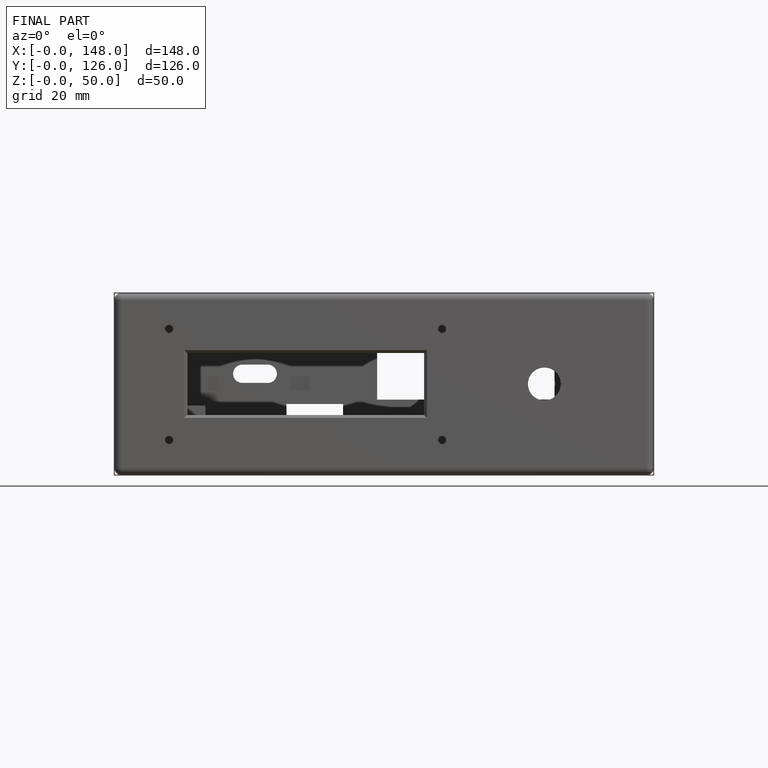
[diagram: finished part — front view with bounding-box wireframe]
